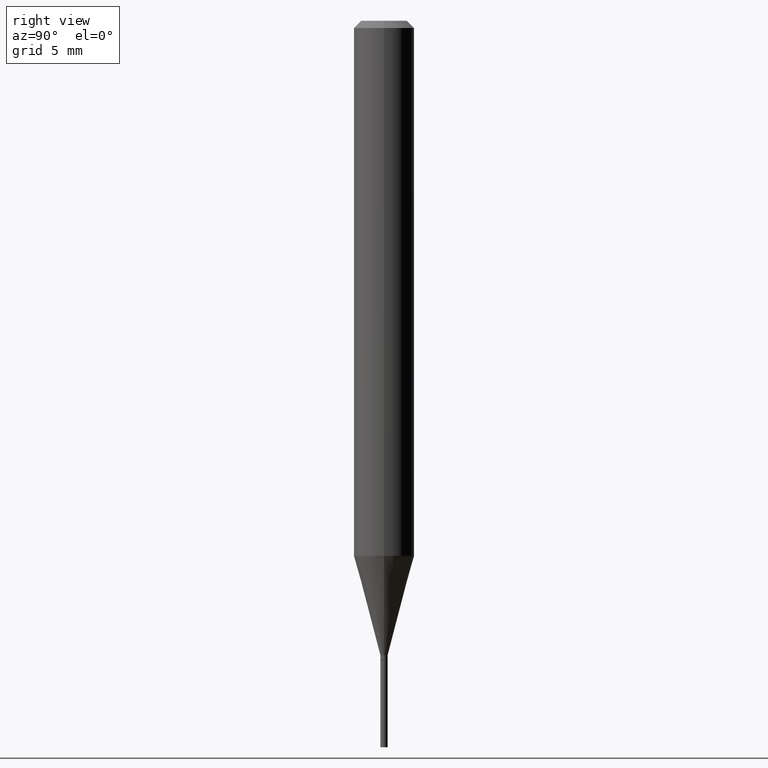
[diagram: clean part render]
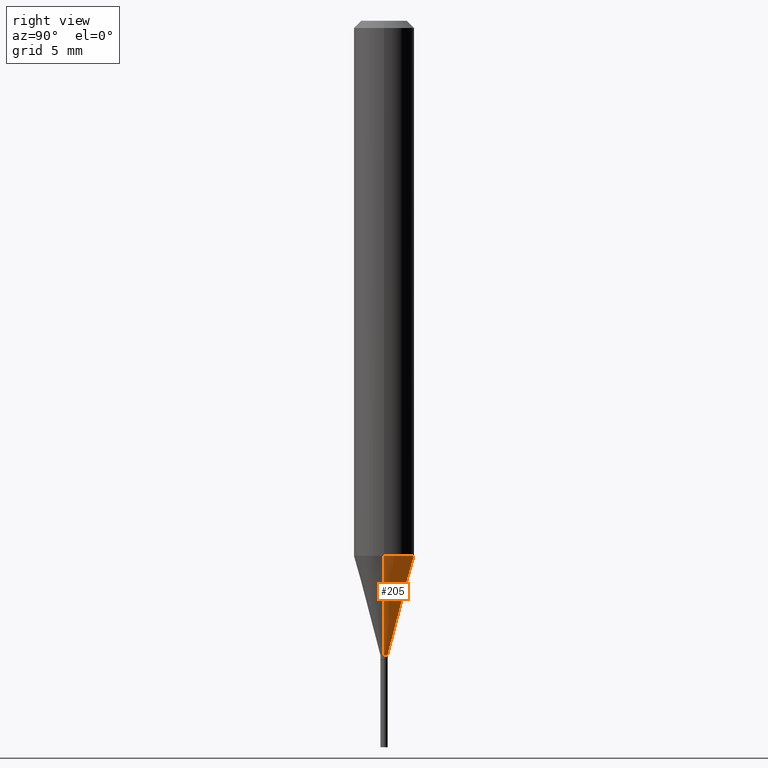
[diagram: same view with one face highlighted and labeled with its STEP entity id]
A machine part, right view. The second image highlights one B-rep face of the part: STEP entity #205.
In plain terms, the highlighted conical surface has half-angle 15 deg.
Its self-contained STEP definition (entity closure, byte-faithful):
#2 = ORIENTED_EDGE ( 'NONE', *, *, #153, .F. ) ;
#28 = VERTEX_POINT ( 'NONE', #454 ) ;
#35 = DIRECTION ( 'NONE',  ( -2.445468806185136597E-29, 3.491481338843145583E-15, 1.000000000000000000 ) ) ;
#36 = DIRECTION ( 'NONE',  ( 1.000000000000000000, -6.982962677686262766E-15, 0.000000000000000000 ) ) ;
#38 = CONICAL_SURFACE ( 'NONE', #290, 0.007499999999999919925, 0.2617993877991501850 ) ;
#40 = CARTESIAN_POINT ( 'NONE',  ( 3.203564136102529457E-29, -4.573840553884521577E-15, -1.310000000000000275 ) ) ;
#48 = AXIS2_PLACEMENT_3D ( 'NONE', #40, #106, #288 ) ;
#52 = DIRECTION ( 'NONE',  ( 0.2588190451025214611, 1.565188264969620982E-15, 0.9659258262890679791 ) ) ;
#53 = EDGE_LOOP ( 'NONE', ( #119, #192, #2, #92 ) ) ;
#59 = CARTESIAN_POINT ( 'NONE',  ( -0.06249999999999999306, -3.413080127771193628E-15, -1.104737205583712356 ) ) ;
#73 = CARTESIAN_POINT ( 'NONE',  ( -0.007499999999999919925, -4.520549848702515199E-15, -1.310000000000000275 ) ) ;
#82 = CARTESIAN_POINT ( 'NONE',  ( 0.06249999999999999306, -4.293604504976646730E-15, -1.104737205583712356 ) ) ;
#83 = CIRCLE ( 'NONE', #348, 0.06250000000000000000 ) ;
#92 = ORIENTED_EDGE ( 'NONE', *, *, #343, .F. ) ;
#96 = CARTESIAN_POINT ( 'NONE',  ( -0.007499999999999919925, -3.966814988236853427E-15, -1.310000000000000275 ) ) ;
#106 = DIRECTION ( 'NONE',  ( -2.445468806185136597E-29, 3.491481338843145583E-15, 1.000000000000000000 ) ) ;
#115 = VERTEX_POINT ( 'NONE', #96 ) ;
#119 = ORIENTED_EDGE ( 'NONE', *, *, #140, .T. ) ;
#140 = EDGE_CURVE ( 'NONE', #28, #115, #370, .T. ) ;
#153 = EDGE_CURVE ( 'NONE', #414, #447, #83, .T. ) ;
#158 = LINE ( 'NONE', #401, #209 ) ;
#192 = ORIENTED_EDGE ( 'NONE', *, *, #240, .T. ) ;
#205 = ADVANCED_FACE ( 'NONE', ( #255 ), #38, .T. ) ;
#209 = VECTOR ( 'NONE', #52, 39.37007874015748143 ) ;
#215 = CARTESIAN_POINT ( 'NONE',  ( 2.701600375287104490E-29, -3.857169337621255061E-15, -1.104737205583712356 ) ) ;
#240 = EDGE_CURVE ( 'NONE', #115, #447, #320, .T. ) ;
#248 = DIRECTION ( 'NONE',  ( 1.000000000000000000, -6.982962677686213068E-15, 0.000000000000000000 ) ) ;
#254 = DIRECTION ( 'NONE',  ( -0.2588190451025214611, 5.211531920934550253E-15, 0.9659258262890679791 ) ) ;
#255 = FACE_OUTER_BOUND ( 'NONE', #53, .T. ) ;
#288 = DIRECTION ( 'NONE',  ( 1.000000000000000000, -6.982962677686213068E-15, 0.000000000000000000 ) ) ;
#290 = AXIS2_PLACEMENT_3D ( 'NONE', #393, #354, #248 ) ;
#301 = VECTOR ( 'NONE', #254, 39.37007874015748143 ) ;
#320 = LINE ( 'NONE', #73, #301 ) ;
#343 = EDGE_CURVE ( 'NONE', #28, #414, #158, .T. ) ;
#348 = AXIS2_PLACEMENT_3D ( 'NONE', #215, #35, #36 ) ;
#354 = DIRECTION ( 'NONE',  ( -2.445468806185136597E-29, 3.491481338843145583E-15, 1.000000000000000000 ) ) ;
#370 = CIRCLE ( 'NONE', #48, 0.007499999999999919925 ) ;
#393 = CARTESIAN_POINT ( 'NONE',  ( 3.203564136102529457E-29, -4.573840553884521577E-15, -1.310000000000000275 ) ) ;
#401 = CARTESIAN_POINT ( 'NONE',  ( 0.007499999999999919925, -4.626212773967167473E-15, -1.310000000000000275 ) ) ;
#414 = VERTEX_POINT ( 'NONE', #82 ) ;
#447 = VERTEX_POINT ( 'NONE', #59 ) ;
#454 = CARTESIAN_POINT ( 'NONE',  ( 0.007499999999999919925, -4.626212773967167473E-15, -1.310000000000000275 ) ) ;